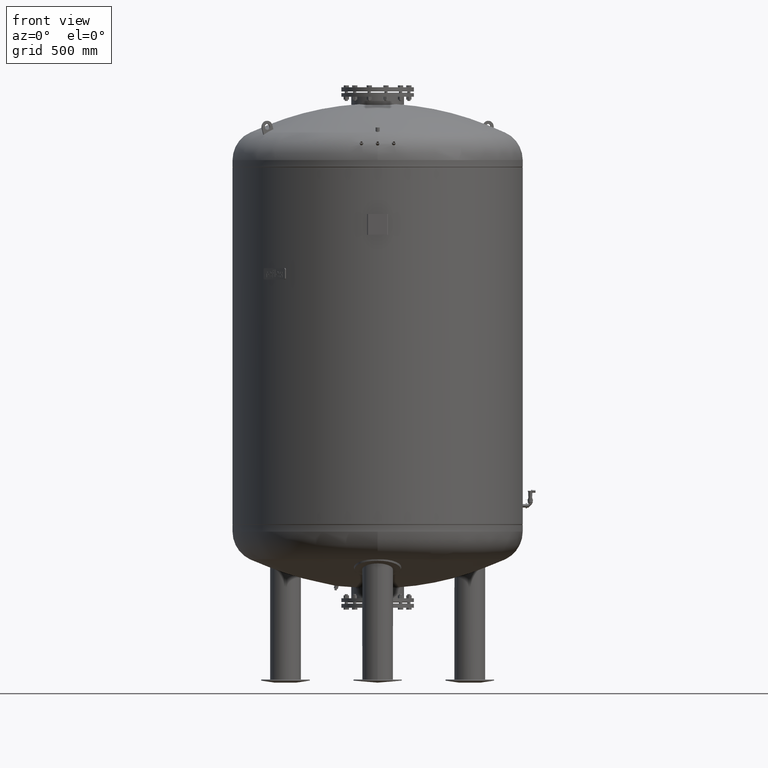
[diagram: clean part render]
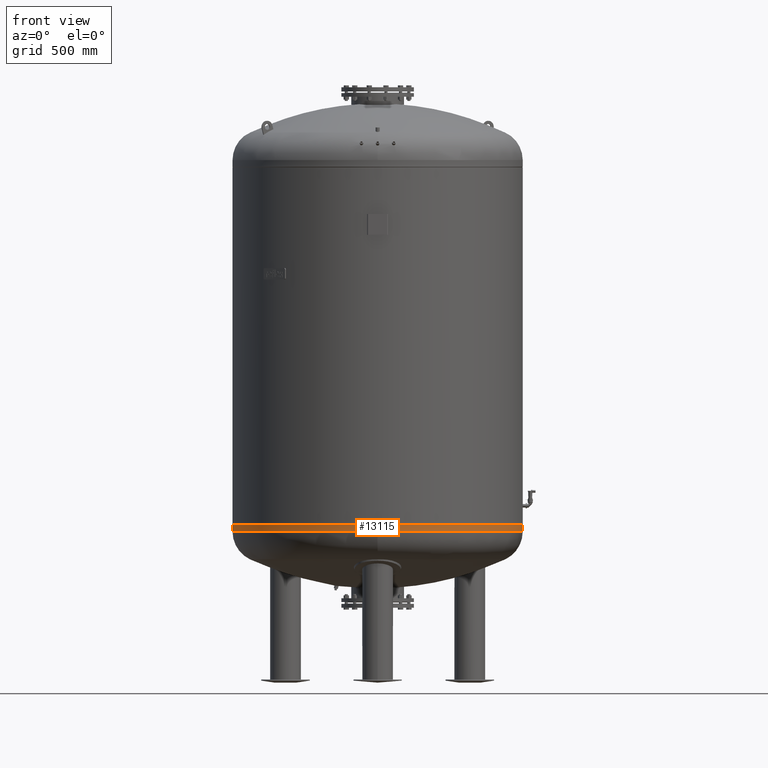
[diagram: same view with one face highlighted and labeled with its STEP entity id]
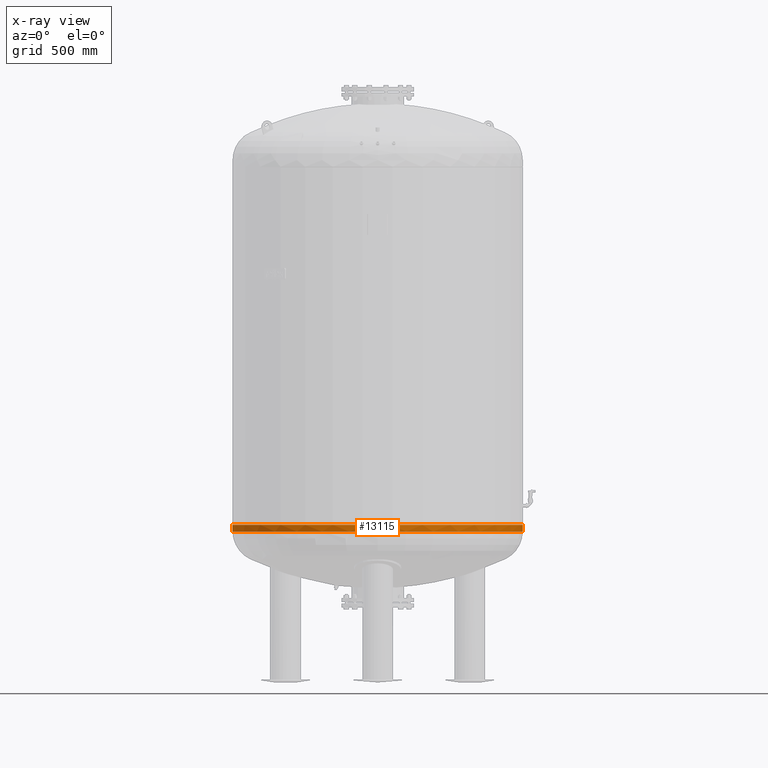
[diagram: x-ray of the same camera — body ghosted, the highlighted face saturated]
A machine part, front view. The second image highlights one B-rep face of the part: STEP entity #13115.
The next image is the same camera in x-ray: the body ghosted, the highlighted face saturated — about 0% of this face is hidden behind the body in this view.
In plain terms, the highlighted cylindrical surface (partial cylindrical patch) has radius 750 mm, axis along (-0, -0, 1).
Its self-contained STEP definition (entity closure, byte-faithful):
#12923=CARTESIAN_POINT('',(-750.0,-6.062002E-014,818.999999999999890));
#12924=VERTEX_POINT('',#12923);
#12925=CARTESIAN_POINT('',(-750.0,-5.423428E-014,784.237667415897930));
#12926=VERTEX_POINT('',#12925);
#12927=CARTESIAN_POINT('',(-750.0,-6.062002E-014,818.999999999999890));
#12928=DIRECTION('',(0.0,0.0,-1.0));
#12929=VECTOR('',#12928,34.762332584101955);
#12930=LINE('',#12927,#12929);
#12931=EDGE_CURVE('',#12924,#12926,#12930,.T.);
#12933=CARTESIAN_POINT('',(750.0,3.122546E-014,819.000000000000110));
#12934=VERTEX_POINT('',#12933);
#12942=CARTESIAN_POINT('',(750.0,3.761120E-014,784.237667415898160));
#12943=VERTEX_POINT('',#12942);
#12944=CARTESIAN_POINT('',(750.0,3.122546E-014,819.000000000000110));
#12945=DIRECTION('',(0.0,0.0,-1.0));
#12946=VECTOR('',#12945,34.762332584101955);
#12947=LINE('',#12944,#12946);
#12948=EDGE_CURVE('',#12934,#12943,#12947,.T.);
#12974=CARTESIAN_POINT('',(-7.105427E-014,-750.0,784.237667415898040));
#12975=VERTEX_POINT('',#12974);
#12985=CARTESIAN_POINT('',(-5.075605E-014,-5.423428E-014,784.237667415898160));
#12986=DIRECTION('',(0.0,0.0,1.0));
#12987=DIRECTION('',(-1.0,0.0,0.0));
#12988=AXIS2_PLACEMENT_3D('',#12985,#12986,#12987);
#12989=CIRCLE('',#12988,750.0);
#12990=EDGE_CURVE('',#12926,#12975,#12989,.T.);
#13087=CARTESIAN_POINT('',(-5.075605E-014,-5.423428E-014,784.237667415898160));
#13088=DIRECTION('',(0.0,0.0,1.0));
#13089=DIRECTION('',(-1.0,0.0,0.0));
#13090=AXIS2_PLACEMENT_3D('',#13087,#13088,#13089);
#13091=CIRCLE('',#13090,750.0);
#13092=EDGE_CURVE('',#12975,#12943,#13091,.T.);
#13097=CARTESIAN_POINT('',(-5.374415E-014,-5.742715E-014,801.618833707949080));
#13098=DIRECTION('',(-1.719159E-016,-1.836970E-016,1.0));
#13099=DIRECTION('',(-1.0,0.0,0.0));
#13100=AXIS2_PLACEMENT_3D('',#13097,#13098,#13099);
#13101=CYLINDRICAL_SURFACE('',#13100,750.0);
#13102=ORIENTED_EDGE('',*,*,#12931,.T.);
#13103=ORIENTED_EDGE('',*,*,#12990,.T.);
#13104=ORIENTED_EDGE('',*,*,#13092,.T.);
#13105=ORIENTED_EDGE('',*,*,#12948,.F.);
#13106=CARTESIAN_POINT('',(-5.673224E-014,-6.062002E-014,819.0));
#13107=DIRECTION('',(0.0,0.0,1.0));
#13108=DIRECTION('',(-1.0,0.0,0.0));
#13109=AXIS2_PLACEMENT_3D('',#13106,#13107,#13108);
#13110=CIRCLE('',#13109,750.0);
#13111=EDGE_CURVE('',#12924,#12934,#13110,.T.);
#13112=ORIENTED_EDGE('',*,*,#13111,.F.);
#13113=EDGE_LOOP('',(#13102,#13103,#13104,#13105,#13112));
#13114=FACE_OUTER_BOUND('',#13113,.T.);
#13115=ADVANCED_FACE('',(#13114),#13101,.T.);